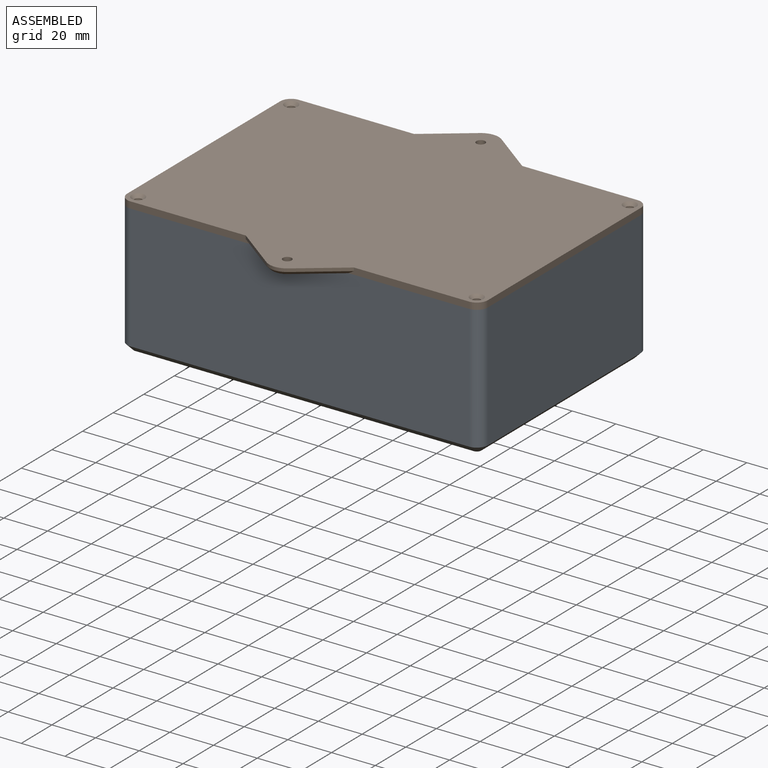
[diagram: assembled view]
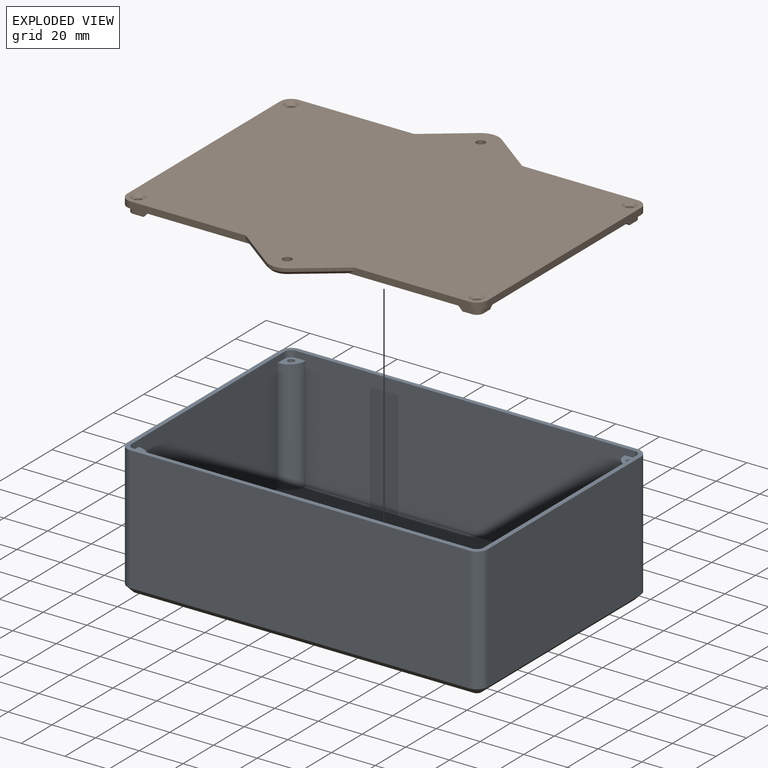
[diagram: exploded view]
GUIDED TOUR — FREECAD ASSEMBLY "enclosure"

This assembly has 2 components, labeled P0..P1 below (a component is one placed body or linked part; the same part can appear more than once), held together by 0 modeled joints plus 1 derived contact edge. A joint is a constraint between two components; its type names the relative motion it leaves free:
  CONTACT — a derived adjacency edge — the two components touch in the source model (clearance under 2% of the assembly's diagonal); it is measured from the geometry, not a modeled constraint.
Axis/direction vectors are unit vectors and 'through' points are millimeter coordinates, both in the assembly's world frame.

MATES
  1. CONTACT "contact_0_1": P0 <-> P1, contact direction (0.000, 0.000, 1.000) through (-82.50, 50.00, 60.00) mm (derived from contact, not a modeled constraint)

ASSEMBLY ORDER
  1. P1 — the base component [order verified]
  2. P0 [order verified]
Order-tag legend:
  [order verified] — this step's position reverses a verified removal order: the component was checked to insert without passing through the ones already placed.

Of the 2 components, 2 carry a construction recipe — the FreeCAD feature program (sketches with constraints, then the solid features that consume them) that regenerates the part from scratch, quoted from this document or from the linked companion document it references; the rest are supplied as boundary geometry only. The tour below walks the components in assembly order: each is shown spotlighted twice — in the assembled view, then in the exploded view, where a leader line traces a displaced component back to its assembled socket (components that stay in place when exploded have no leader line; saturated green if recipe-attached, orange if geometry-only; every other component desaturated gray) — followed by its recipe or geometry summary and the mates that hold it.
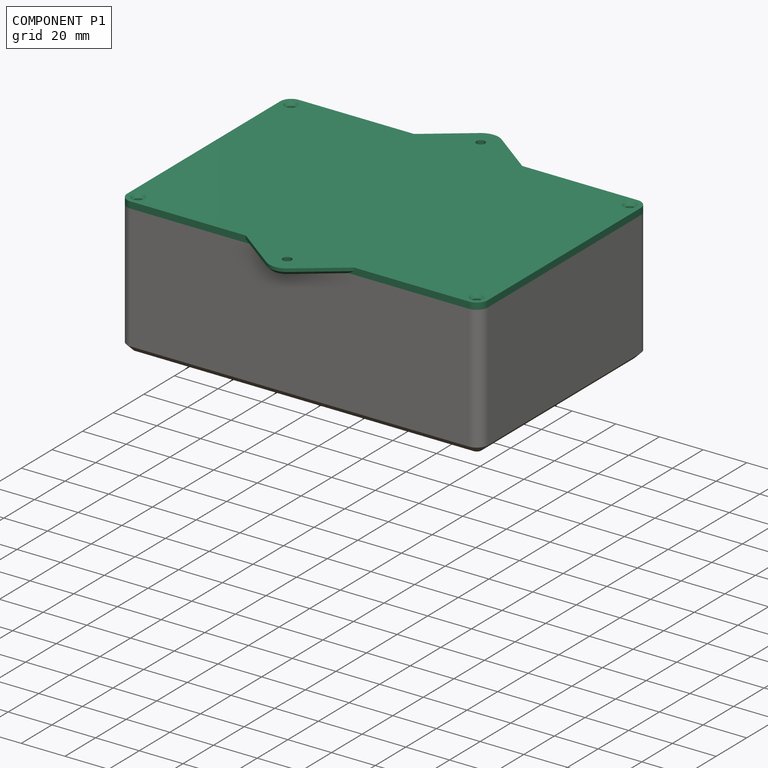
[diagram: component P1 — assembled]
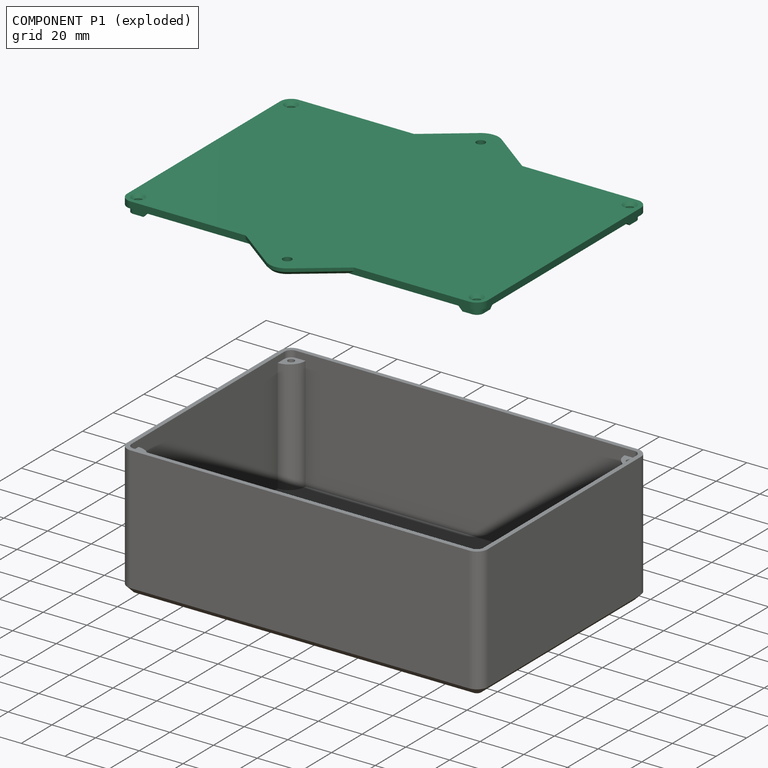
[diagram: component P1 — exploded]
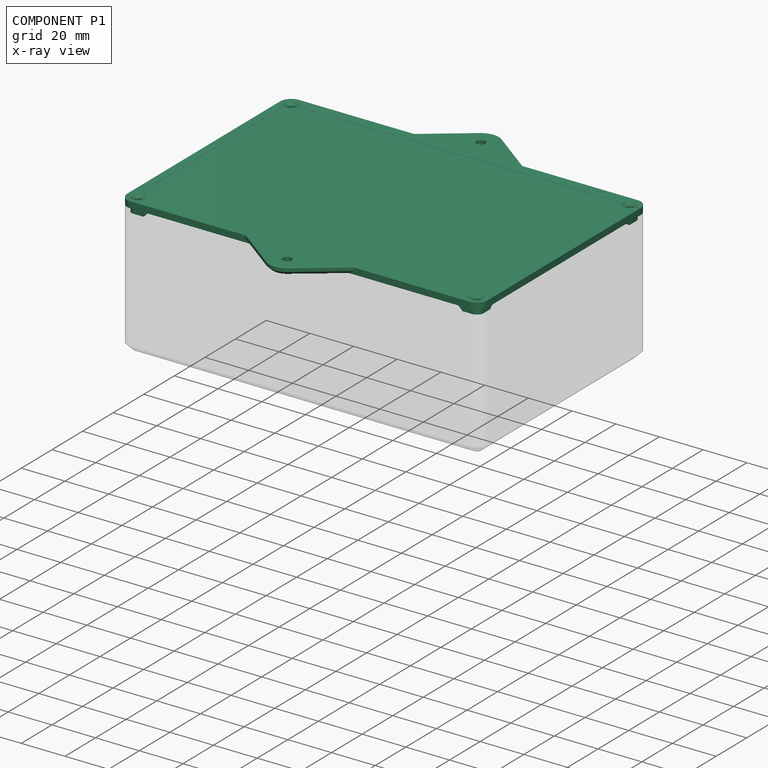
[diagram: component P1 — x-ray view]
COMPONENT P1 — recipe-attached ("Lid", modeled in this document).
Held by: resting contact with P0 (derived edge).
Construction recipe (the document's own serialized feature program — sketch geometry with constraints, then the solid features built on it; lengths are millimeters unless a unit is written):

FEATURE [Sketcher::SketchObject] Sketch002
  ArcFitTolerance = 1e-06
  AttachmentSupport = -> [XY_Plane003]
  ExternalTypes = [0]
  FullyConstrained = true
  MakeInternals = false
  MapMode = 5
  expr: Constraints[5] = <<box>>.out_length
  expr: Constraints[6] = <<box>>.out_width
  sketch-geometry (16):
    g0: LineSegment StartX=-82.5 StartY=50 StartZ=0 EndX=-82.5 EndY=-50 EndZ=0
    g1: LineSegment StartX=-77.5 StartY=-55 StartZ=0 EndX=77.5 EndY=-55 EndZ=0
    g2: LineSegment StartX=82.5 StartY=-50 StartZ=0 EndX=82.5 EndY=50 EndZ=0
    g3: LineSegment StartX=77.5 StartY=55 StartZ=0 EndX=-77.5 EndY=55 EndZ=0
    g4: GeomPoint [constr] X=-82.5 Y=55 Z=0
    g5: GeomPoint [constr] X=82.5 Y=55 Z=0
    g6: GeomPoint [constr] X=82.5 Y=-55 Z=0
    g7: GeomPoint [constr] X=-82.5 Y=-55 Z=0
    g8: ArcOfCircle CenterX=-77.5 CenterY=50 CenterZ=0 NormalX=0 NormalY=0 NormalZ=1 AngleXU=0 Radius=5 StartAngle=1.5708 EndAngle=3.14159
    g9: GeomPoint [constr] X=-82.5 Y=55 Z=0
    g10: ArcOfCircle CenterX=77.5 CenterY=50 CenterZ=0 NormalX=0 NormalY=0 NormalZ=1 AngleXU=0 Radius=5 StartAngle=1.459e-13 EndAngle=1.5708
    g11: GeomPoint [constr] X=82.5 Y=55 Z=0
    g12: ArcOfCircle CenterX=77.5 CenterY=-50 CenterZ=0 NormalX=0 NormalY=0 NormalZ=1 AngleXU=0 Radius=5 StartAngle=4.71239 EndAngle=6.28319
    g13: GeomPoint [constr] X=82.5 Y=-55 Z=0
    g14: ArcOfCircle CenterX=-77.5 CenterY=-50 CenterZ=0 NormalX=0 NormalY=0 NormalZ=1 AngleXU=0 Radius=5 StartAngle=3.14159 EndAngle=4.71239
    g15: GeomPoint [constr] X=-82.5 Y=-55 Z=0
  constraints (35):
    c: Vertical(g0)
    c: Vertical(g2)
    c: Horizontal(g1)
    c: Horizontal(g3)
    c: Symmetric(g5,g7,g-1)
    c: DistanceX(g4,g5) = 165
    c: DistanceY(g6,g5) = 110
    c: PointOnObject(g4,g0)
    c: PointOnObject(g4,g3)
    c: PointOnObject(g5,g3)
    c: PointOnObject(g5,g2)
    c: PointOnObject(g6,g2)
    c: PointOnObject(g6,g1)
    c: PointOnObject(g7,g0)
    c: PointOnObject(g7,g1)
    c: PointOnObject(g9,g0)
    c: PointOnObject(g9,g3)
    c: Tangent(g0,g8) = -1.5708
    c: Tangent(g3,g8) = -1.5708
    c: PointOnObject(g11,g2)
    c: PointOnObject(g11,g3)
    c: Tangent(g2,g10) = -1.5708
    c: Tangent(g3,g10) = -1.5708
    c: PointOnObject(g13,g2)
    c: PointOnObject(g13,g1)
    c: Tangent(g2,g12) = -1.5708
    c: Tangent(g1,g12) = -1.5708
    c: PointOnObject(g15,g1)
    c: PointOnObject(g15,g0)
    c: Tangent(g1,g14) = -1.5708
    c: Tangent(g0,g14) = -1.5708
    c: Radius(g8) = 5
    c: Equal(g10,g12)
    c: Equal(g12,g14)
    c: Equal(g8,g10)
FEATURE [PartDesign::Pad] Pad002  label="lid block"
  Direction = (0,0,1)
  Length = 3
  Length2 = 10
  Profile = -> Sketch002
  ReferenceAxis = -> Sketch002 [N_Axis]
  Refine = true
  Suppressed = false
  Type = 0
  expr: Length = <<box>>.lid_thickness
FEATURE [Sketcher::SketchObject] Sketch005
  ArcFitTolerance = 1e-06
  AttachmentSupport = -> [XY_Plane003]
  ExternalTypes = [0]
  FullyConstrained = true
  MakeInternals = false
  MapMode = 5
  expr: Constraints[10] = <<box>>.lug_hole_center_width
  expr: Constraints[15] = <<box>>.in_radius
  expr: Constraints[9] = <<box>>.lug_hole_center_length
  sketch-geometry (6):
    g0: LineSegment StartX=-80.5 StartY=45.5 StartZ=0 EndX=-80.5 EndY=50 EndZ=0
    g1: LineSegment StartX=-77.5 StartY=53 StartZ=0 EndX=-73 EndY=53 EndZ=0
    g2: ArcOfCircle CenterX=-80.5 CenterY=53 CenterZ=0 NormalX=0 NormalY=0 NormalZ=1 AngleXU=0 Radius=7.5 StartAngle=4.71239 EndAngle=6.28319
    g3: Circle [constr] CenterX=-77.5 CenterY=50 CenterZ=0 NormalX=0 NormalY=0 NormalZ=1 AngleXU=0 Radius=1.5
    g4: ArcOfCircle CenterX=-77.5 CenterY=50 CenterZ=0 NormalX=0 NormalY=0 NormalZ=1 AngleXU=0 Radius=3 StartAngle=1.5708 EndAngle=3.14159
    g5: GeomPoint [constr] X=-80.5 Y=53 Z=0
  constraints (16):
    c: Vertical(g0)
    c: Horizontal(g1)
    c: Coincident(g2,g5)
    c: Coincident(g2,g1)
    c: Coincident(g2,g0)
    c: Radius(g2) = 7.5
    c: DistanceX(g5,g3) = 3
    c: DistanceY(g3,g5) = 3
    c: Diameter(g3) = 3
    c: DistanceX(g3,g-1) = 77.5
    c: DistanceY(g-1,g3) = 50
    c: PointOnObject(g5,g0)
    c: PointOnObject(g5,g1)
    c: Tangent(g0,g4) = 1.5708
    c: Tangent(g1,g4) = 1.5708
    c: Radius(g4) = 3
FEATURE [PartDesign::Pad] Pad004  label="add lid lug"
  BaseFeature = -> Pad002
  Direction = (0,0,1)
  Length = 3
  Length2 = 10
  Profile = -> Sketch005
  ReferenceAxis = -> Sketch005 [N_Axis]
  Refine = true
  Reversed = true
  Suppressed = false
  Type = 0
  expr: Length = <<box>>.lid_lug_height
FEATURE [Sketcher::SketchObject] Sketch006
  ArcFitTolerance = 1e-06
  AttachmentOffset = pos=(0,0,3) rot=(0,0,1;0rad)
  AttachmentSupport = -> [XY_Plane003]
  ExternalTypes = [0]
  FullyConstrained = true
  MakeInternals = false
  MapMode = 5
  Placement = pos=(0,0,3) rot=(0,0,1;0rad)
  expr: .AttachmentOffset.Base.z = <<box>>.lid_thickness
  expr: Constraints[1] = <<box>>.lug_hole_center_width
  expr: Constraints[2] = <<box>>.lug_hole_center_length
  sketch-geometry (1):
    g0: Circle CenterX=-77.5 CenterY=50 CenterZ=0 NormalX=0 NormalY=0 NormalZ=1 AngleXU=0 Radius=1.5
  constraints (3):
    c: Diameter(g0) = 3
    c: DistanceY(g-1,g0) = 50
    c: DistanceX(g0,g-1) = 77.5
FEATURE [PartDesign::Hole] Hole  label="add lug screw hole"
  BaseFeature = -> Pad004
  CustomThreadClearance = 0
  Depth = 25
  DepthType = 0
  Diameter = 3.4
  DrillForDepth = false
  DrillPoint = 1
  DrillPointAngle = 118
  HoleCutCountersinkAngle = 90
  HoleCutCustomValues = false
  HoleCutDepth = 0
  HoleCutDiameter = 6.1
  HoleCutType = 2
  ModelThread = false
  Profile = -> Sketch006
  Refine = true
  Suppressed = false
  Tapered = false
  TaperedAngle = 90
  ThreadClass = 0
  ThreadDepth = 25
  ThreadDepthType = 0
  ThreadDiameter = 3
  ThreadDirection = 0
  ThreadFit = 0
  ThreadSize = 9
  ThreadType = 1
  Threaded = false
  UseCustomThreadClearance = false
FEATURE [PartDesign::Mirrored] Mirrored002
  MirrorPlane = -> Sketch005 [V_Axis]
  Refine = true
  Suppressed = false
  TransformMode = 0
FEATURE [PartDesign::Mirrored] Mirrored003
  MirrorPlane = -> Sketch005 [H_Axis]
  Refine = true
  Suppressed = false
  TransformMode = 0
FEATURE [PartDesign::MultiTransform] MultiTransform001  label="mirror lugs"
  BaseFeature = -> Hole
  Originals = -> [Pad004,Hole]
  Refine = true
  Suppressed = false
  TransformMode = 0
  Transformations = -> [Mirrored002,Mirrored003]
FEATURE [PartDesign::Chamfer] Chamfer  label="chamfer lid lugs"
  Angle = 45
  Base = -> MultiTransform001 [Edge22,Edge29,Edge27,Edge17]
  BaseFeature = -> MultiTransform001
  ChamferType = 0
  FlipDirection = false
  Refine = true
  Size = 2.99
  Size2 = 1
  SupportTransform = false
  Suppressed = false
  UseAllEdges = false
  expr: Size = <<box>>.lid_lug_height - 0.01
FEATURE [Sketcher::SketchObject] Sketch007
  ArcFitTolerance = 1e-06
  AttachmentSupport = -> [XY_Plane003]
  ExternalTypes = [0]
  FullyConstrained = true
  MakeInternals = false
  MapMode = 5
  expr: Constraints[10] = <<box>>.tab_length
  expr: Constraints[12] = <<box>>.tab_hole_diam
  expr: Constraints[18] = <<box>>.tab_width
  expr: Constraints[3] = <<box>>.out_width / 2
  expr: Constraints[9] = <<box>>.tab_radius
  sketch-geometry (8):
    g0: LineSegment StartX=-4.95 StartY=69.85 StartZ=0 EndX=-24.75 EndY=55 EndZ=0
    g1: LineSegment StartX=-24.75 StartY=55 StartZ=0 EndX=24.75 EndY=55 EndZ=0
    g2: LineSegment StartX=24.75 StartY=55 StartZ=0 EndX=4.95 EndY=69.85 EndZ=0
    g3: ArcOfCircle CenterX=-2.4e-15 CenterY=63.25 CenterZ=0 NormalX=0 NormalY=0 NormalZ=1 AngleXU=0 Radius=8.25 StartAngle=0.927295 EndAngle=2.2143
    g4: GeomPoint [constr] X=0 Y=73.5625 Z=0
    g5: Circle CenterX=0 CenterY=63.25 CenterZ=0 NormalX=0 NormalY=0 NormalZ=1 AngleXU=0 Radius=2
    g6: LineSegment [constr] StartX=0 StartY=55 StartZ=0 EndX=0 EndY=71.5 EndZ=0
    g7: GeomPoint [constr] X=0 Y=63.25 Z=0
  constraints (19):
    c: Coincident(g0,g1)
    c: Coincident(g1,g2)
    c: Symmetric(g0,g1,g-2)
    c: Distance(g-1,g1) = 55
    c: PointOnObject(g4,g-2)
    c: PointOnObject(g4,g0)
    c: PointOnObject(g4,g2)
    c: Tangent(g0,g3) = -1.5708
    c: Tangent(g2,g3) = -1.5708
    c: Radius(g3) = 8.25
    c: Distance(g0,g1) = 49.5
    c: PointOnObject(g5,g-2)
    c: Diameter(g5) = 4
    c: PointOnObject(g6,g-2)
    c: PointOnObject(g6,g3)
    c: PointOnObject(g6,g1)
    c: Symmetric(g6,g6,g7)
    c: Coincident(g5,g7)
    c: DistanceY(g6,g6) = 16.5
FEATURE [PartDesign::Pad] Pad005  label="add tab"
  BaseFeature = -> Chamfer
  Direction = (0,0,1)
  Length = 3
  Length2 = 10
  Profile = -> Sketch007
  ReferenceAxis = -> Sketch007 [N_Axis]
  Refine = true
  Suppressed = false
  Type = 0
  expr: Length = <<box>>.lid_thickness
FEATURE [PartDesign::Mirrored] Mirrored004
  MirrorPlane = -> Sketch007 [H_Axis]
  Refine = true
  Suppressed = false
  TransformMode = 0
FEATURE [PartDesign::MultiTransform] MultiTransform002  label="mirror tab"
  BaseFeature = -> Pad005
  Originals = -> [Pad005]
  Refine = true
  Suppressed = false
  TransformMode = 0
  Transformations = -> [Mirrored004]
FEATURE [PartDesign::Chamfer] Chamfer002  label="chamfer tabs"
  Angle = 45
  Base = -> MultiTransform002 [Edge42,Edge18]
  BaseFeature = -> MultiTransform002
  ChamferType = 0
  FlipDirection = false
  Refine = true
  Size = 1.5
  Size2 = 1
  SupportTransform = false
  Suppressed = false
  UseAllEdges = false
  expr: Size = <<box>>.tab_chamfer
FEATURE [PartDesign::Body] Body001  label="body lid"
  AllowCompound = false
  Group = -> [Sketch002,Pad002,Sketch005,Pad004,Sketch006,Hole,MultiTransform001,Mirrored002,Mirrored003,Chamfer,Sketch007,Pad005,MultiTransform002,Mirrored004,Chamfer002]
  Origin = -> Origin006
  Placement = pos=(0,3e-15,0) rot=(0,0,1;0rad)
  Tip = -> Chamfer002
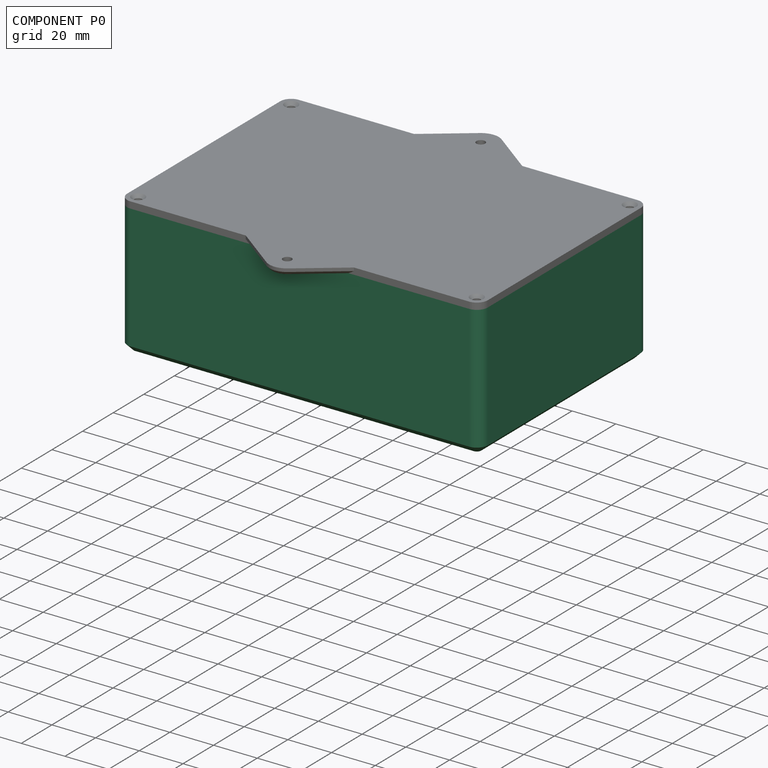
[diagram: component P0 — assembled]
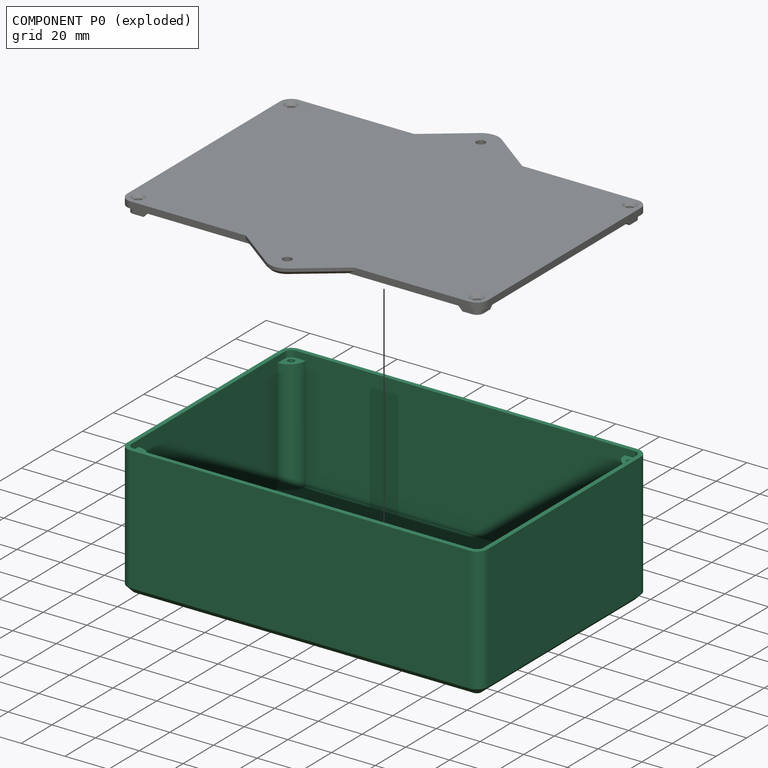
[diagram: component P0 — exploded]
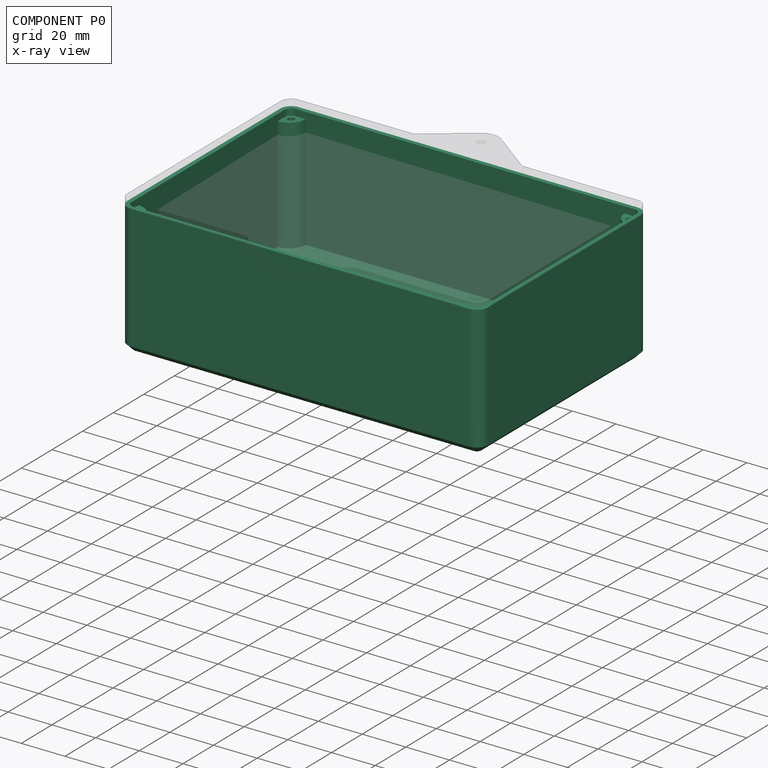
[diagram: component P0 — x-ray view]
COMPONENT P0 — recipe-attached ("Box", modeled in this document).
Held by: resting contact with P1 (derived edge).
Construction recipe (the document's own serialized feature program — sketch geometry with constraints, then the solid features built on it; lengths are millimeters unless a unit is written):

FEATURE [Sketcher::SketchObject] Sketch
  ArcFitTolerance = 1e-06
  AttachmentSupport = -> [XY_Plane001]
  ExternalTypes = [0]
  FullyConstrained = true
  MakeInternals = false
  MapMode = 5
  expr: Constraints[31] = <<box>>.out_radius
  expr: Constraints[5] = <<box>>.out_length
  expr: Constraints[6] = <<box>>.out_width
  sketch-geometry (16):
    g0: LineSegment StartX=-82.5 StartY=50 StartZ=0 EndX=-82.5 EndY=-50 EndZ=0
    g1: LineSegment StartX=-77.5 StartY=-55 StartZ=0 EndX=77.5 EndY=-55 EndZ=0
    g2: LineSegment StartX=82.5 StartY=-50 StartZ=0 EndX=82.5 EndY=50 EndZ=0
    g3: LineSegment StartX=77.5 StartY=55 StartZ=0 EndX=-77.5 EndY=55 EndZ=0
    g4: GeomPoint [constr] X=-82.5 Y=55 Z=0
    g5: GeomPoint [constr] X=82.5 Y=55 Z=0
    g6: GeomPoint [constr] X=82.5 Y=-55 Z=0
    g7: GeomPoint [constr] X=-82.5 Y=-55 Z=0
    g8: ArcOfCircle CenterX=-77.5 CenterY=50 CenterZ=0 NormalX=0 NormalY=0 NormalZ=1 AngleXU=0 Radius=5 StartAngle=1.5708 EndAngle=3.14159
    g9: GeomPoint [constr] X=-82.5 Y=55 Z=0
    g10: ArcOfCircle CenterX=77.5 CenterY=50 CenterZ=0 NormalX=0 NormalY=0 NormalZ=1 AngleXU=0 Radius=5 StartAngle=1.459e-13 EndAngle=1.5708
    g11: GeomPoint [constr] X=82.5 Y=55 Z=0
    g12: ArcOfCircle CenterX=77.5 CenterY=-50 CenterZ=0 NormalX=0 NormalY=0 NormalZ=1 AngleXU=0 Radius=5 StartAngle=4.71239 EndAngle=6.28319
    g13: GeomPoint [constr] X=82.5 Y=-55 Z=0
    g14: ArcOfCircle CenterX=-77.5 CenterY=-50 CenterZ=0 NormalX=0 NormalY=0 NormalZ=1 AngleXU=0 Radius=5 StartAngle=3.14159 EndAngle=4.71239
    g15: GeomPoint [constr] X=-82.5 Y=-55 Z=0
  constraints (35):
    c: Vertical(g0)
    c: Vertical(g2)
    c: Horizontal(g1)
    c: Horizontal(g3)
    c: Symmetric(g5,g7,g-1)
    c: DistanceX(g4,g5) = 165
    c: DistanceY(g6,g5) = 110
    c: PointOnObject(g4,g0)
    c: PointOnObject(g4,g3)
    c: PointOnObject(g5,g3)
    c: PointOnObject(g5,g2)
    c: PointOnObject(g6,g2)
    c: PointOnObject(g6,g1)
    c: PointOnObject(g7,g0)
    c: PointOnObject(g7,g1)
    c: PointOnObject(g9,g0)
    c: PointOnObject(g9,g3)
    c: Tangent(g0,g8) = -1.5708
    c: Tangent(g3,g8) = -1.5708
    c: PointOnObject(g11,g2)
    c: PointOnObject(g11,g3)
    c: Tangent(g2,g10) = -1.5708
    c: Tangent(g3,g10) = -1.5708
    c: PointOnObject(g13,g2)
    c: PointOnObject(g13,g1)
    c: Tangent(g2,g12) = -1.5708
    c: Tangent(g1,g12) = -1.5708
    c: PointOnObject(g15,g1)
    c: PointOnObject(g15,g0)
    c: Tangent(g1,g14) = -1.5708
    c: Tangent(g0,g14) = -1.5708
    c: Radius(g8) = 5
    c: Equal(g10,g12)
    c: Equal(g12,g14)
    c: Equal(g8,g10)
FEATURE [PartDesign::Pad] Pad  label="box block"
  Direction = (0,0,1)
  Length = 60
  Length2 = 10
  Profile = -> Sketch
  ReferenceAxis = -> Sketch [N_Axis]
  Refine = true
  Suppressed = false
  Type = 0
  expr: Length = <<box>>.out_height
FEATURE [PartDesign::Thickness] Thickness
  Base = -> Pad [Face10]
  BaseFeature = -> Pad
  Intersection = false
  Join = 0
  Mode = 0
  Refine = true
  Reversed = true
  SupportTransform = false
  Suppressed = false
  Value = 2
  expr: Value = <<box>>.wall_thickness
FEATURE [Sketcher::SketchObject] Sketch001
  ArcFitTolerance = 1e-06
  AttachmentSupport = -> [XY_Plane001]
  ExternalGeometry = -> [Thickness]
  ExternalTypes = [0]
  FullyConstrained = true
  MakeInternals = false
  MapMode = 5
  expr: Constraints[10] = <<box>>.lug_hole_center_length
  expr: Constraints[11] = <<box>>.lug_hole_center_width
  expr: Constraints[6] = <<box>>.lug_hole_diam
  expr: Constraints[7] = <<box>>.lug_hole_diam
  expr: Constraints[8] = <<box>>.lug_hole_diam
  expr: Constraints[9] = <<box>>.lug_radius
  sketch-geometry (4):
    g0: LineSegment StartX=-80.5 StartY=53 StartZ=0 EndX=-73 EndY=53 EndZ=0
    g1: LineSegment StartX=-80.5 StartY=53 StartZ=0 EndX=-80.5 EndY=45.5 EndZ=0
    g2: ArcOfCircle CenterX=-80.5 CenterY=53 CenterZ=0 NormalX=0 NormalY=0 NormalZ=1 AngleXU=0 Radius=7.5 StartAngle=4.71239 EndAngle=6.28319
    g3: Circle CenterX=-77.5 CenterY=50 CenterZ=0 NormalX=0 NormalY=0 NormalZ=1 AngleXU=0 Radius=1.5
  constraints (12):
    c: Coincident(g1,g0)
    c: Vertical(g1)
    c: Coincident(g2,g0)
    c: Coincident(g2,g0)
    c: Coincident(g2,g1)
    c: Horizontal(g0)
    c: Diameter(g3) = 3
    c: DistanceX(g0,g3) = 3
    c: DistanceY(g3,g0) = 3
    c: Radius(g2) = 7.5
    c: Distance(g3,g-2) = 77.5
    c: DistanceY(g-1,g3) = 50
FEATURE [PartDesign::Pad] Pad001  label="add lug"
  BaseFeature = -> Thickness
  Direction = (0,0,1)
  Length = 57
  Length2 = 10
  Profile = -> Sketch001
  ReferenceAxis = -> Sketch001 [N_Axis]
  Refine = true
  Suppressed = false
  Type = 0
  expr: Length = <<box>>.lug_height
FEATURE [PartDesign::Mirrored] Mirrored
  MirrorPlane = -> Sketch001 [V_Axis]
  Refine = true
  Suppressed = false
  TransformMode = 0
FEATURE [PartDesign::Mirrored] Mirrored001
  MirrorPlane = -> Sketch001 [H_Axis]
  Refine = true
  Suppressed = false
  TransformMode = 0
FEATURE [PartDesign::MultiTransform] MultiTransform  label="mirror lug"
  BaseFeature = -> Pad001
  Originals = -> [Pad001]
  Refine = true
  Suppressed = false
  TransformMode = 0
  Transformations = -> [Mirrored,Mirrored001]
FEATURE [PartDesign::Chamfer] Chamfer001  label="chamfer box inner edges"
  Angle = 45
  Base = -> MultiTransform [Edge67,Edge68,Edge69,Edge70,Edge45,Edge35,Edge61,Edge53]
  BaseFeature = -> MultiTransform
  ChamferType = 0
  FlipDirection = false
  Refine = true
  Size = 3
  Size2 = 1
  SupportTransform = false
  Suppressed = false
  UseAllEdges = false
  expr: Size = <<box>>.box_chamfer
FEATURE [PartDesign::Chamfer] Chamfer003  label="chamfer box outer edges"
  Angle = 45
  Base = -> Chamfer001 [Edge68]
  BaseFeature = -> Chamfer001
  ChamferType = 0
  FlipDirection = false
  Refine = true
  Size = 3
  Size2 = 1
  SupportTransform = false
  Suppressed = false
  UseAllEdges = false
  expr: Size = <<box>>.box_chamfer
FEATURE [PartDesign::Body] Body  label="body box"
  AllowCompound = false
  Group = -> [Sketch,Pad,Thickness,Sketch001,Pad001,MultiTransform,Mirrored,Mirrored001,Chamfer001,Chamfer003]
  Origin = -> Origin002
  Tip = -> Chamfer003
PROVENANCE & LICENSES
Assembly and component geometry: a FreeCAD (.FCStd) document from a public repository crawl; components, placements and joints were extracted with FreeCAD and each solid tessellated.
Construction recipes: the document's own serialized feature recipes (and, for linked parts, the recipes of companion documents from the same project).
License: as declared in the source repository (recorded in the dataset sidecar).
Joints: native FreeCAD joints and A2plus constraints are mapped to standard mate types; edges marked 'derived from contact' connect touching components and are measured from the geometry, not modeled.
Verification: 2 of this assembly's 2 components carry a construction recipe (2 from this document itself); the rest are geometry-only. Every component's tessellation passed the extraction mesh gates (mesh-volume checksum against the B-rep where available, bounding-box inflation <= 2%).
Renders: orthographic iso camera (az 35 / el 25); the floor grid conveys scale (grid pitch printed in each image; no ruler). In the exploded view each component is displaced by its stored offset vector: the offsets alone carry the explosion direction (mate normal/axis signs are not orientation cues and do not encode it), and separation distances are assigned per mate-chain, not proportionally to assembly-order depth.
